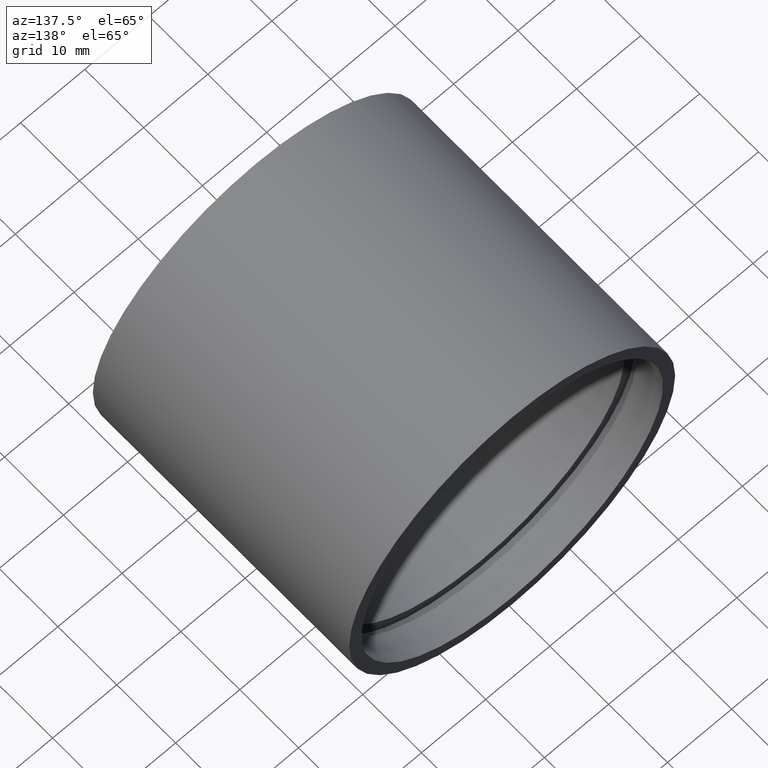
[diagram: clean part render]
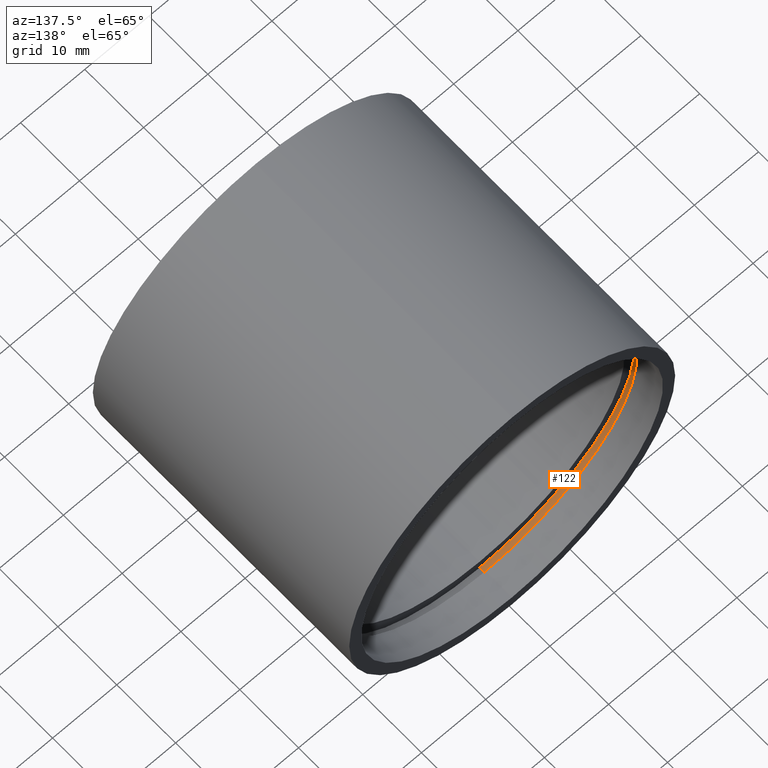
[diagram: same view with one face highlighted and labeled with its STEP entity id]
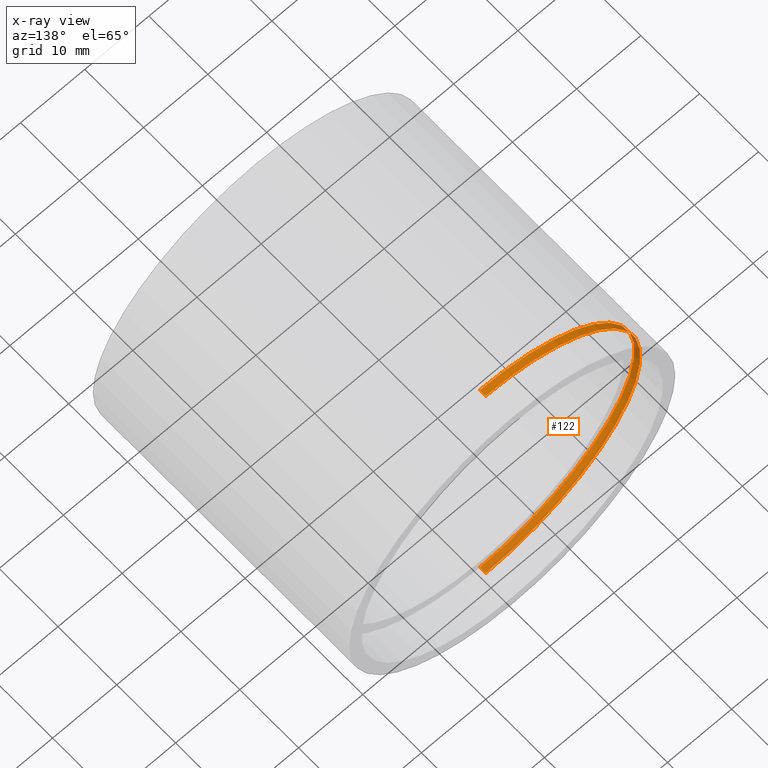
[diagram: x-ray of the same camera — body ghosted, the highlighted face saturated]
A machine part, auxiliary view. The second image highlights one B-rep face of the part: STEP entity #122.
The next image is the same camera in x-ray: the body ghosted, the highlighted face saturated — about 3% of this face is hidden behind the body in this view.
In plain terms, the highlighted cylindrical surface (partial cylindrical patch) has radius 24.1 mm, axis along (-0, 1, -0).
Its self-contained STEP definition (entity closure, byte-faithful):
#20 = LINE ( 'NONE', #156, #361 ) ;
#27 = DIRECTION ( 'NONE',  ( -0.0000000000000000000, 1.000000000000000000, -0.0000000000000000000 ) ) ;
#30 = EDGE_CURVE ( 'NONE', #296, #421, #528, .T. ) ;
#42 = ORIENTED_EDGE ( 'NONE', *, *, #486, .T. ) ;
#58 = CARTESIAN_POINT ( 'NONE',  ( 2.951398785945125600E-015, 38.09999999999998000, -24.10000000000003300 ) ) ;
#70 = CARTESIAN_POINT ( 'NONE',  ( 2.951398785945125600E-015, 39.09999999999998000, -24.10000000000003300 ) ) ;
#75 = ORIENTED_EDGE ( 'NONE', *, *, #30, .T. ) ;
#78 = ORIENTED_EDGE ( 'NONE', *, *, #332, .F. ) ;
#89 = CYLINDRICAL_SURFACE ( 'NONE', #228, 24.10000000000003300 ) ;
#122 = ADVANCED_FACE ( 'NONE', ( #420 ), #89, .F. ) ;
#142 = CARTESIAN_POINT ( 'NONE',  ( 0.0000000000000000000, 38.09999999999998000, 0.0000000000000000000 ) ) ;
#152 = CIRCLE ( 'NONE', #418, 24.10000000000003300 ) ;
#156 = CARTESIAN_POINT ( 'NONE',  ( 0.0000000000000000000, 161.3761669434274500, 24.10000000000003300 ) ) ;
#162 = VERTEX_POINT ( 'NONE', #369 ) ;
#180 = DIRECTION ( 'NONE',  ( -0.0000000000000000000, 1.000000000000000000, -0.0000000000000000000 ) ) ;
#196 = EDGE_LOOP ( 'NONE', ( #225, #75, #42, #78 ) ) ;
#225 = ORIENTED_EDGE ( 'NONE', *, *, #605, .F. ) ;
#228 = AXIS2_PLACEMENT_3D ( 'NONE', #351, #180, #458 ) ;
#267 = VECTOR ( 'NONE', #404, 1000.000000000000000 ) ;
#296 = VERTEX_POINT ( 'NONE', #58 ) ;
#332 = EDGE_CURVE ( 'NONE', #162, #373, #20, .T. ) ;
#351 = CARTESIAN_POINT ( 'NONE',  ( 0.0000000000000000000, 161.3761669434274500, 0.0000000000000000000 ) ) ;
#353 = DIRECTION ( 'NONE',  ( -0.0000000000000000000, 1.000000000000000000, -0.0000000000000000000 ) ) ;
#361 = VECTOR ( 'NONE', #585, 1000.000000000000000 ) ;
#369 = CARTESIAN_POINT ( 'NONE',  ( 0.0000000000000000000, 38.09999999999998000, 24.10000000000003300 ) ) ;
#373 = VERTEX_POINT ( 'NONE', #602 ) ;
#382 = DIRECTION ( 'NONE',  ( 0.0000000000000000000, 0.0000000000000000000, 1.000000000000000000 ) ) ;
#404 = DIRECTION ( 'NONE',  ( -0.0000000000000000000, 1.000000000000000000, -0.0000000000000000000 ) ) ;
#418 = AXIS2_PLACEMENT_3D ( 'NONE', #142, #353, #456 ) ;
#420 = FACE_OUTER_BOUND ( 'NONE', #196, .T. ) ;
#421 = VERTEX_POINT ( 'NONE', #70 ) ;
#451 = AXIS2_PLACEMENT_3D ( 'NONE', #544, #27, #382 ) ;
#456 = DIRECTION ( 'NONE',  ( 0.0000000000000000000, 0.0000000000000000000, 1.000000000000000000 ) ) ;
#458 = DIRECTION ( 'NONE',  ( 0.0000000000000000000, 0.0000000000000000000, 1.000000000000000000 ) ) ;
#486 = EDGE_CURVE ( 'NONE', #421, #373, #536, .T. ) ;
#528 = LINE ( 'NONE', #554, #267 ) ;
#536 = CIRCLE ( 'NONE', #451, 24.10000000000003300 ) ;
#544 = CARTESIAN_POINT ( 'NONE',  ( 0.0000000000000000000, 39.09999999999998000, 0.0000000000000000000 ) ) ;
#554 = CARTESIAN_POINT ( 'NONE',  ( 2.951398785945125600E-015, 161.3761669434274500, -24.10000000000003300 ) ) ;
#585 = DIRECTION ( 'NONE',  ( -0.0000000000000000000, 1.000000000000000000, -0.0000000000000000000 ) ) ;
#602 = CARTESIAN_POINT ( 'NONE',  ( 0.0000000000000000000, 39.09999999999998000, 24.10000000000003300 ) ) ;
#605 = EDGE_CURVE ( 'NONE', #296, #162, #152, .T. ) ;